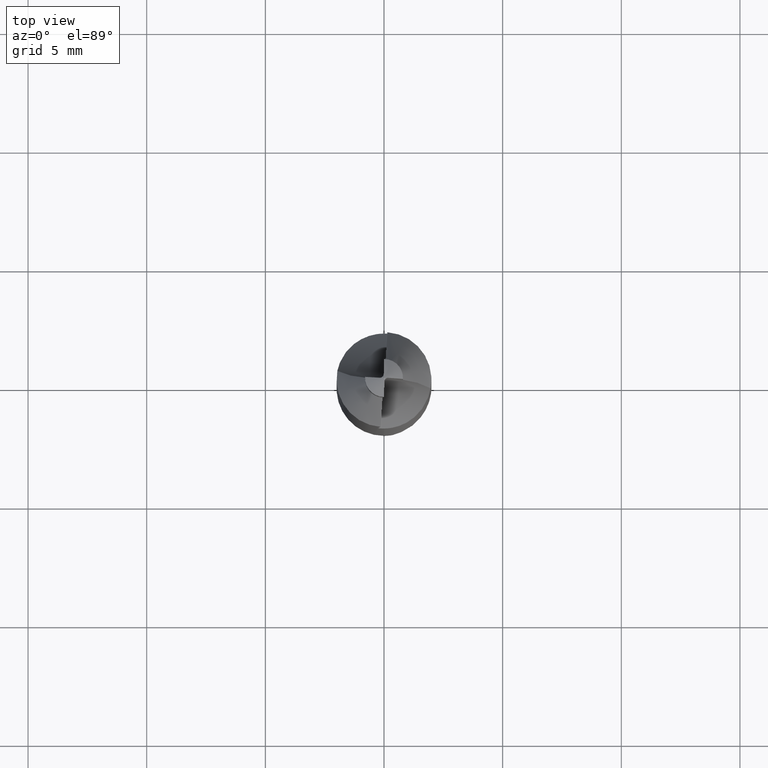
[diagram: clean part render]
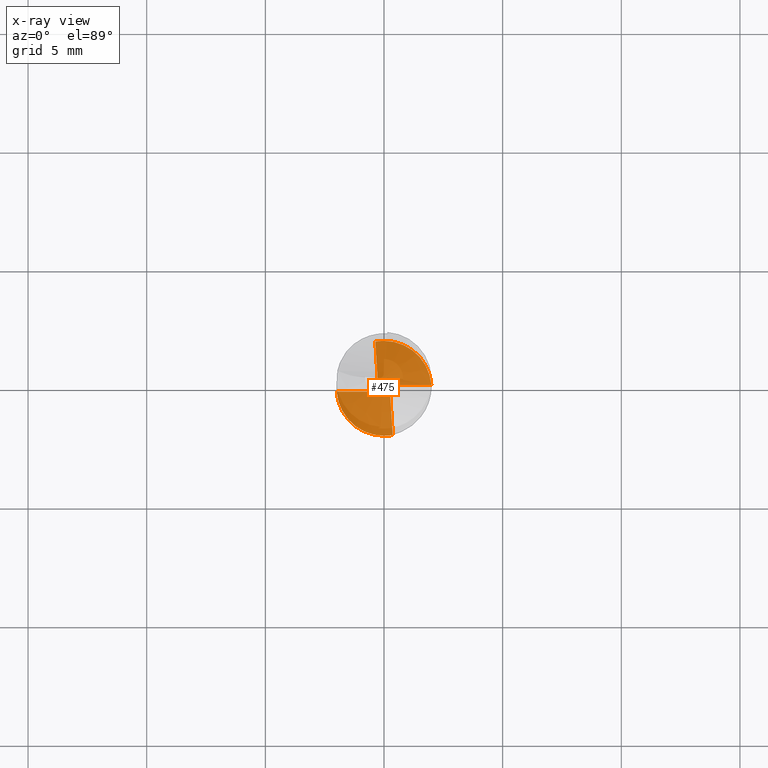
[diagram: x-ray — body ghosted, one internal face saturated and labeled with its STEP entity id]
A machine part, top view, then the same camera in x-ray: the body is ghosted and one INTERNAL B-rep face — a face not visible from any outside direction — is saturated and labeled: STEP entity #475.
In plain terms, the highlighted planar face has unit normal (0, 0, -1).
Its self-contained STEP definition (entity closure, byte-faithful):
#413=EDGE_CURVE('',#955,#619,#1162,.T.);
#475=ADVANCED_FACE('',(#1233),#1234,.T.);
#523=EDGE_CURVE('',#667,#851,#1287,.T.);
#557=VERTEX_POINT('',#1324);
#619=VERTEX_POINT('',#1392);
#621=EDGE_CURVE('',#897,#557,#1394,.T.);
#635=EDGE_CURVE('',#557,#979,#1409,.T.);
#667=VERTEX_POINT('',#1441);
#707=EDGE_CURVE('',#827,#1059,#1483,.T.);
#771=EDGE_CURVE('',#979,#795,#1554,.T.);
#795=VERTEX_POINT('',#1581);
#807=EDGE_CURVE('',#887,#955,#1594,.T.);
#827=VERTEX_POINT('',#1615);
#851=VERTEX_POINT('',#1642);
#865=EDGE_CURVE('',#851,#887,#1658,.T.);
#887=VERTEX_POINT('',#1683);
#897=VERTEX_POINT('',#1693);
#903=EDGE_CURVE('',#1049,#897,#1699,.T.);
#933=EDGE_CURVE('',#1059,#1049,#1732,.T.);
#955=VERTEX_POINT('',#1758);
#979=VERTEX_POINT('',#1783);
#1049=VERTEX_POINT('',#1857);
#1059=VERTEX_POINT('',#1869);
#1079=EDGE_CURVE('',#795,#667,#1891,.T.);
#1103=EDGE_CURVE('',#619,#827,#1916,.T.);
#1162=LINE('',#1972,#1973);
#1233=FACE_OUTER_BOUND('',#2151,.T.);
#1234=PLANE('',#2152);
#1287=(B_SPLINE_CURVE(2,(#2272,#2273,#2274),.UNSPECIFIED.,.F.,.F.)B_SPLINE_CURVE_WITH_KNOTS((3,3),(0.0,2.21296189911165),.UNSPECIFIED.)RATIONAL_B_SPLINE_CURVE((1.0,1.0000298173225,1.0))BOUNDED_CURVE()REPRESENTATION_ITEM('')GEOMETRIC_REPRESENTATION_ITEM()CURVE());
#1324=CARTESIAN_POINT('',(-1.9951216410914,-0.139605290905324,-25.8215390347779));
#1392=CARTESIAN_POINT('',(0.409659219780592,0.139605290905327,-25.8215390347779));
#1394=CIRCLE('',#2628,2.0);
#1409=LINE('',#2659,#2660);
#1441=CARTESIAN_POINT('',(-0.244047967375369,0.0316600751203079,-25.8215390347779));
#1483=B_SPLINE_CURVE_WITH_KNOTS('',3,(#2891,#2892,#2893,#2894,#2895,#2896,#2897,#2898,#2899,#2900,#2901,#2902,#2903,#2904,#2905,#2906,#2907,#2908,#2909,#2910,#2911,#2912,#2913),.UNSPECIFIED.,.F.,.F.,(4,2,2,2,2,2,2,2,2,3,4),(-0.539748009448319,-0.480983036849572,-0.421854062897361,-0.362090620795622,-0.302132624919703,-0.241070190454297,-0.179539013626117,-0.118646873753875,-0.0587868472554084,1.11022302462516E-016,0.0587346398177641),.UNSPECIFIED.);
#1554=B_SPLINE_CURVE_WITH_KNOTS('',3,(#3092,#3093,#3094,#3095,#3096,#3097,#3098,#3099,#3100,#3101,#3102,#3103,#3104,#3105,#3106,#3107,#3108,#3109,#3110,#3111,#3112,#3113,#3114),.UNSPECIFIED.,.F.,.F.,(4,2,2,2,2,2,2,2,2,3,4),(-0.539747691930246,-0.4809827193315,-0.422280813170378,-0.362959177486977,-0.30257612192858,-0.241070190454297,-0.179539013626116,-0.118646873753875,-0.0587868472554067,0.0,0.0587346398177617),.UNSPECIFIED.);
#1581=CARTESIAN_POINT('',(-0.243740139211303,0.0204922361797674,-25.8215390318347));
#1594=CIRCLE('',#3205,2.0);
#1615=CARTESIAN_POINT('',(0.243740139211302,-0.0204922361797658,-25.8215390318347));
#1642=CARTESIAN_POINT('',(-0.367014517809569,1.96603670965651,-25.8215390347779));
#1658=CIRCLE('',#3301,2.0);
#1683=CARTESIAN_POINT('',(-2.44921270764475E-016,2.0,-25.8215390318347));
#1693=CARTESIAN_POINT('',(2.44921270764476E-016,-2.0,-25.8215390318347));
#1699=CIRCLE('',#3447,2.0);
#1732=(B_SPLINE_CURVE(2,(#3571,#3572,#3573),.UNSPECIFIED.,.F.,.F.)B_SPLINE_CURVE_WITH_KNOTS((3,3),(0.0,2.21296189911165),.UNSPECIFIED.)RATIONAL_B_SPLINE_CURVE((1.0,1.00002981726071,1.0))BOUNDED_CURVE()REPRESENTATION_ITEM('')GEOMETRIC_REPRESENTATION_ITEM()CURVE());
#1758=CARTESIAN_POINT('',(1.9951216410914,0.139605290905326,-25.8215390347779));
#1783=CARTESIAN_POINT('',(-0.409659219780593,-0.139605290905325,-25.8215390347779));
#1857=CARTESIAN_POINT('',(0.367014517809569,-1.96603670965651,-25.8215390347779));
#1869=CARTESIAN_POINT('',(0.244047967375367,-0.0316600751203061,-25.8215390347779));
#1891=B_SPLINE_CURVE_WITH_KNOTS('',3,(#3856,#3857,#3858,#3859,#3860,#3861,#3862,#3863,#3864,#3865,#3866,#3867,#3868,#3869,#3870,#3871,#3872,#3873,#3874,#3875,#3876,#3877,#3878),.UNSPECIFIED.,.F.,.F.,(4,2,2,2,2,2,2,2,2,3,4),(-0.539747691930246,-0.4809827193315,-0.422280813170378,-0.362959177486977,-0.30257612192858,-0.241070190454297,-0.179539013626116,-0.118646873753875,-0.0587868472554067,0.0,0.0587346398177617),.UNSPECIFIED.);
#1916=B_SPLINE_CURVE_WITH_KNOTS('',3,(#3964,#3965,#3966,#3967,#3968,#3969,#3970,#3971,#3972,#3973,#3974,#3975,#3976,#3977,#3978,#3979,#3980,#3981,#3982,#3983,#3984,#3985,#3986),.UNSPECIFIED.,.F.,.F.,(4,2,2,2,2,2,2,2,2,3,4),(-0.539748009448319,-0.480983036849572,-0.421854062897361,-0.362090620795622,-0.302132624919703,-0.241070190454297,-0.179539013626117,-0.118646873753875,-0.0587868472554084,1.11022302462516E-016,0.0587346398177641),.UNSPECIFIED.);
#1972=CARTESIAN_POINT('',(4.47846097,0.139605290905326,-25.8215390347779));
#1973=VECTOR('',#4075,1.0);
#2151=EDGE_LOOP('',(#4158,#4159,#4160,#4161,#4162,#4163,#4164,#4165,#4166,#4167,#4168,#4169));
#2152=AXIS2_PLACEMENT_3D('',#4170,#4171,#4172);
#2272=CARTESIAN_POINT('',(-0.228792138237713,-0.208504701810543,-25.8215390318347));
#2273=CARTESIAN_POINT('',(-0.29949985680211,0.904700015280984,-25.8215390318347));
#2274=CARTESIAN_POINT('',(-0.369174994127072,2.0,-25.8215390318347));
#2628=AXIS2_PLACEMENT_3D('',#4352,#4353,#4354);
#2659=CARTESIAN_POINT('',(-4.47846097,-0.139605290905324,-25.8215390347779));
#2660=VECTOR('',#4367,1.0);
#2891=CARTESIAN_POINT('',(0.560260241183773,-0.0810727061709958,-25.8215390318347));
#2892=CARTESIAN_POINT('',(0.567989523199702,-0.0630737994134678,-25.8215390318347));
#2893=CARTESIAN_POINT('',(0.572868956309304,-0.0400798294810276,-25.8215390318347));
#2894=CARTESIAN_POINT('',(0.573208433842996,-0.000783313621338648,-25.8215390318347));
#2895=CARTESIAN_POINT('',(0.56866341848361,0.0224274710505661,-25.8215390318347));
#2896=CARTESIAN_POINT('',(0.553423972321455,0.0590110741189452,-25.8215390318347));
#2897=CARTESIAN_POINT('',(0.53997231234341,0.0787726501120373,-25.8215390318347));
#2898=CARTESIAN_POINT('',(0.51146575934226,0.106700355661609,-25.8215390318347));
#2899=CARTESIAN_POINT('',(0.49137142171052,0.119792773247934,-25.8215390318347));
#2900=CARTESIAN_POINT('',(0.453993771664102,0.134966383574443,-25.8215390318347));
#2901=CARTESIAN_POINT('',(0.430013365428907,0.139605290908046,-25.8215390318347));
#2902=CARTESIAN_POINT('',(0.389148828331045,0.139605290908046,-25.8215390318347));
#2903=CARTESIAN_POINT('',(0.364990153613537,0.134900808854583,-25.8215390318347));
#2904=CARTESIAN_POINT('',(0.327176206105713,0.11955872136511,-25.8215390318347));
#2905=CARTESIAN_POINT('',(0.306762593183684,0.106271854195425,-25.8215390318347));
#2906=CARTESIAN_POINT('',(0.277951210353347,0.0781644734766068,-25.8215390318347));
#2907=CARTESIAN_POINT('',(0.264349096837341,0.0584591911522852,-25.8215390318347));
#2908=CARTESIAN_POINT('',(0.24876865222193,0.022108540291777,-25.8215390318347));
#2909=CARTESIAN_POINT('',(0.243903019817343,-0.000897297379134823,-25.8215390318347));
#2910=CARTESIAN_POINT('',(0.243740139211303,-0.0204922361797659,-25.8215390318347));
#2911=CARTESIAN_POINT('',(0.243577403256311,-0.0400697731023692,-25.8215390318347));
#2912=CARTESIAN_POINT('',(0.248058322897902,-0.0631323537361406,-25.8215390318347));
#2913=CARTESIAN_POINT('',(0.255530703051323,-0.0812284850848487,-25.8215390318347));
#3092=CARTESIAN_POINT('',(-0.560260241183775,0.081072706170997,-25.8215390318347));
#3093=CARTESIAN_POINT('',(-0.567989523199704,0.0630737994134691,-25.8215390318347));
#3094=CARTESIAN_POINT('',(-0.572868956309306,0.0400798294810292,-25.8215390318347));
#3095=CARTESIAN_POINT('',(-0.573207204094358,0.000925664239982332,-25.8215390318347));
#3096=CARTESIAN_POINT('',(-0.568728368065981,-0.0221239829100887,-25.8215390318347));
#3097=CARTESIAN_POINT('',(-0.553704483394181,-0.0584834573498822,-25.8215390318347));
#3098=CARTESIAN_POINT('',(-0.540437168590446,-0.0781564691051592,-25.8215390318347));
#3099=CARTESIAN_POINT('',(-0.512093579834638,-0.106241621159559,-25.8215390318347));
#3100=CARTESIAN_POINT('',(-0.491912267895104,-0.119511617096641,-25.8215390318347));
#3101=CARTESIAN_POINT('',(-0.454309348295078,-0.134899596163426,-25.8215390318347));
#3102=CARTESIAN_POINT('',(-0.430161197765202,-0.139605290908044,-25.8215390318347));
#3103=CARTESIAN_POINT('',(-0.389148828331047,-0.139605290908044,-25.8215390318347));
#3104=CARTESIAN_POINT('',(-0.364990153613539,-0.134900808854581,-25.8215390318347));
#3105=CARTESIAN_POINT('',(-0.327176206105715,-0.119558721365109,-25.8215390318347));
#3106=CARTESIAN_POINT('',(-0.306762593183686,-0.106271854195423,-25.8215390318347));
#3107=CARTESIAN_POINT('',(-0.277951210353348,-0.0781644734766049,-25.8215390318347));
#3108=CARTESIAN_POINT('',(-0.264349096837343,-0.0584591911522824,-25.8215390318347));
#3109=CARTESIAN_POINT('',(-0.248768652221932,-0.0221085402917743,-25.8215390318347));
#3110=CARTESIAN_POINT('',(-0.243903019817344,0.000897297379136776,-25.8215390318347));
#3111=CARTESIAN_POINT('',(-0.243740139211305,0.0204922361797673,-25.8215390318347));
#3112=CARTESIAN_POINT('',(-0.243577403256313,0.0400697731023698,-25.8215390318347));
#3113=CARTESIAN_POINT('',(-0.248058322897901,0.0631323537361407,-25.8215390318347));
#3114=CARTESIAN_POINT('',(-0.255530703051325,0.0812284850848467,-25.8215390318347));
#3205=AXIS2_PLACEMENT_3D('',#4539,#4540,#4541);
#3301=AXIS2_PLACEMENT_3D('',#4623,#4624,#4625);
#3447=AXIS2_PLACEMENT_3D('',#4656,#4657,#4658);
#3571=CARTESIAN_POINT('',(0.228792138237711,0.208504701810544,-25.8215390318347));
#3572=CARTESIAN_POINT('',(0.299499856802049,-0.904700015280051,-25.8215390318347));
#3573=CARTESIAN_POINT('',(0.369174994127071,-2.0,-25.8215390318347));
#3856=CARTESIAN_POINT('',(-0.560260241183775,0.081072706170997,-25.8215390318347));
#3857=CARTESIAN_POINT('',(-0.567989523199704,0.0630737994134691,-25.8215390318347));
#3858=CARTESIAN_POINT('',(-0.572868956309306,0.0400798294810292,-25.8215390318347));
#3859=CARTESIAN_POINT('',(-0.573207204094358,0.000925664239982332,-25.8215390318347));
#3860=CARTESIAN_POINT('',(-0.568728368065981,-0.0221239829100887,-25.8215390318347));
#3861=CARTESIAN_POINT('',(-0.553704483394181,-0.0584834573498822,-25.8215390318347));
#3862=CARTESIAN_POINT('',(-0.540437168590446,-0.0781564691051592,-25.8215390318347));
#3863=CARTESIAN_POINT('',(-0.512093579834638,-0.106241621159559,-25.8215390318347));
#3864=CARTESIAN_POINT('',(-0.491912267895104,-0.119511617096641,-25.8215390318347));
#3865=CARTESIAN_POINT('',(-0.454309348295078,-0.134899596163426,-25.8215390318347));
#3866=CARTESIAN_POINT('',(-0.430161197765202,-0.139605290908044,-25.8215390318347));
#3867=CARTESIAN_POINT('',(-0.389148828331047,-0.139605290908044,-25.8215390318347));
#3868=CARTESIAN_POINT('',(-0.364990153613539,-0.134900808854581,-25.8215390318347));
#3869=CARTESIAN_POINT('',(-0.327176206105715,-0.119558721365109,-25.8215390318347));
#3870=CARTESIAN_POINT('',(-0.306762593183686,-0.106271854195423,-25.8215390318347));
#3871=CARTESIAN_POINT('',(-0.277951210353348,-0.0781644734766049,-25.8215390318347));
#3872=CARTESIAN_POINT('',(-0.264349096837343,-0.0584591911522824,-25.8215390318347));
#3873=CARTESIAN_POINT('',(-0.248768652221932,-0.0221085402917743,-25.8215390318347));
#3874=CARTESIAN_POINT('',(-0.243903019817344,0.000897297379136776,-25.8215390318347));
#3875=CARTESIAN_POINT('',(-0.243740139211305,0.0204922361797673,-25.8215390318347));
#3876=CARTESIAN_POINT('',(-0.243577403256313,0.0400697731023698,-25.8215390318347));
#3877=CARTESIAN_POINT('',(-0.248058322897901,0.0631323537361407,-25.8215390318347));
#3878=CARTESIAN_POINT('',(-0.255530703051325,0.0812284850848467,-25.8215390318347));
#3964=CARTESIAN_POINT('',(0.560260241183773,-0.0810727061709958,-25.8215390318347));
#3965=CARTESIAN_POINT('',(0.567989523199702,-0.0630737994134678,-25.8215390318347));
#3966=CARTESIAN_POINT('',(0.572868956309304,-0.0400798294810276,-25.8215390318347));
#3967=CARTESIAN_POINT('',(0.573208433842996,-0.000783313621338648,-25.8215390318347));
#3968=CARTESIAN_POINT('',(0.56866341848361,0.0224274710505661,-25.8215390318347));
#3969=CARTESIAN_POINT('',(0.553423972321455,0.0590110741189452,-25.8215390318347));
#3970=CARTESIAN_POINT('',(0.53997231234341,0.0787726501120373,-25.8215390318347));
#3971=CARTESIAN_POINT('',(0.51146575934226,0.106700355661609,-25.8215390318347));
#3972=CARTESIAN_POINT('',(0.49137142171052,0.119792773247934,-25.8215390318347));
#3973=CARTESIAN_POINT('',(0.453993771664102,0.134966383574443,-25.8215390318347));
#3974=CARTESIAN_POINT('',(0.430013365428907,0.139605290908046,-25.8215390318347));
#3975=CARTESIAN_POINT('',(0.389148828331045,0.139605290908046,-25.8215390318347));
#3976=CARTESIAN_POINT('',(0.364990153613537,0.134900808854583,-25.8215390318347));
#3977=CARTESIAN_POINT('',(0.327176206105713,0.11955872136511,-25.8215390318347));
#3978=CARTESIAN_POINT('',(0.306762593183684,0.106271854195425,-25.8215390318347));
#3979=CARTESIAN_POINT('',(0.277951210353347,0.0781644734766068,-25.8215390318347));
#3980=CARTESIAN_POINT('',(0.264349096837341,0.0584591911522852,-25.8215390318347));
#3981=CARTESIAN_POINT('',(0.24876865222193,0.022108540291777,-25.8215390318347));
#3982=CARTESIAN_POINT('',(0.243903019817343,-0.000897297379134823,-25.8215390318347));
#3983=CARTESIAN_POINT('',(0.243740139211303,-0.0204922361797659,-25.8215390318347));
#3984=CARTESIAN_POINT('',(0.243577403256311,-0.0400697731023692,-25.8215390318347));
#3985=CARTESIAN_POINT('',(0.248058322897902,-0.0631323537361406,-25.8215390318347));
#3986=CARTESIAN_POINT('',(0.255530703051323,-0.0812284850848487,-25.8215390318347));
#4075=DIRECTION('',(-1.0,0.0,0.0));
#4158=ORIENTED_EDGE('',*,*,#523,.T.);
#4159=ORIENTED_EDGE('',*,*,#865,.T.);
#4160=ORIENTED_EDGE('',*,*,#807,.T.);
#4161=ORIENTED_EDGE('',*,*,#413,.T.);
#4162=ORIENTED_EDGE('',*,*,#1103,.T.);
#4163=ORIENTED_EDGE('',*,*,#707,.T.);
#4164=ORIENTED_EDGE('',*,*,#933,.T.);
#4165=ORIENTED_EDGE('',*,*,#903,.T.);
#4166=ORIENTED_EDGE('',*,*,#621,.T.);
#4167=ORIENTED_EDGE('',*,*,#635,.T.);
#4168=ORIENTED_EDGE('',*,*,#771,.T.);
#4169=ORIENTED_EDGE('',*,*,#1079,.T.);
#4170=CARTESIAN_POINT('',(0.0,1.0,-25.8215390318347));
#4171=DIRECTION('',(0.0,0.0,-1.0));
#4172=DIRECTION('',(0.0,1.0,0.0));
#4352=CARTESIAN_POINT('',(0.0,0.0,-25.8215390318347));
#4353=DIRECTION('',(0.0,0.0,-1.0));
#4354=DIRECTION('',(0.0,1.0,0.0));
#4367=DIRECTION('',(1.0,0.0,0.0));
#4539=CARTESIAN_POINT('',(0.0,0.0,-25.8215390318347));
#4540=DIRECTION('',(0.0,0.0,-1.0));
#4541=DIRECTION('',(0.0,1.0,0.0));
#4623=CARTESIAN_POINT('',(0.0,0.0,-25.8215390318347));
#4624=DIRECTION('',(0.0,0.0,-1.0));
#4625=DIRECTION('',(0.0,1.0,0.0));
#4656=CARTESIAN_POINT('',(0.0,0.0,-25.8215390318347));
#4657=DIRECTION('',(0.0,0.0,-1.0));
#4658=DIRECTION('',(0.0,1.0,0.0));